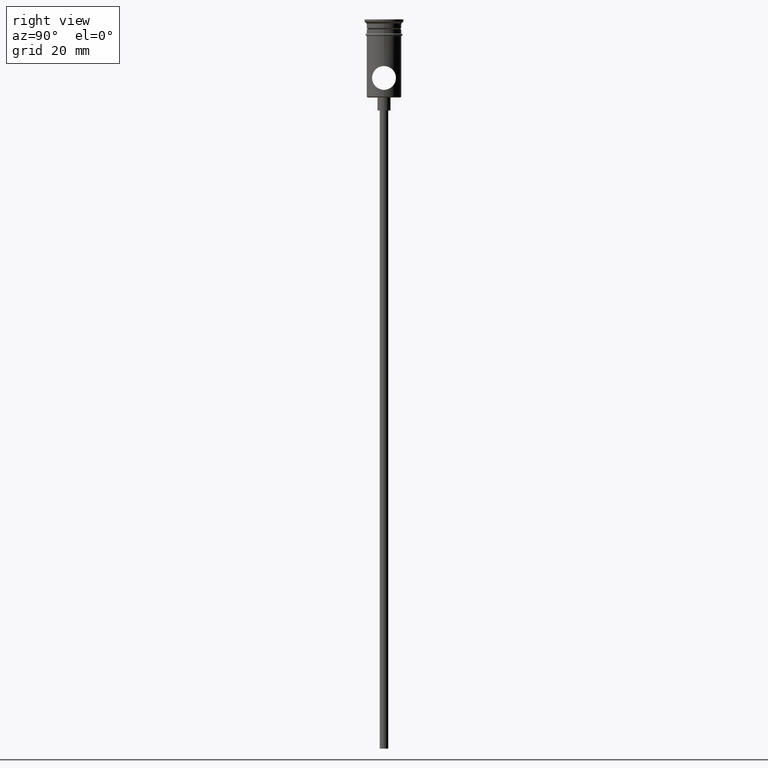
[diagram: clean part render]
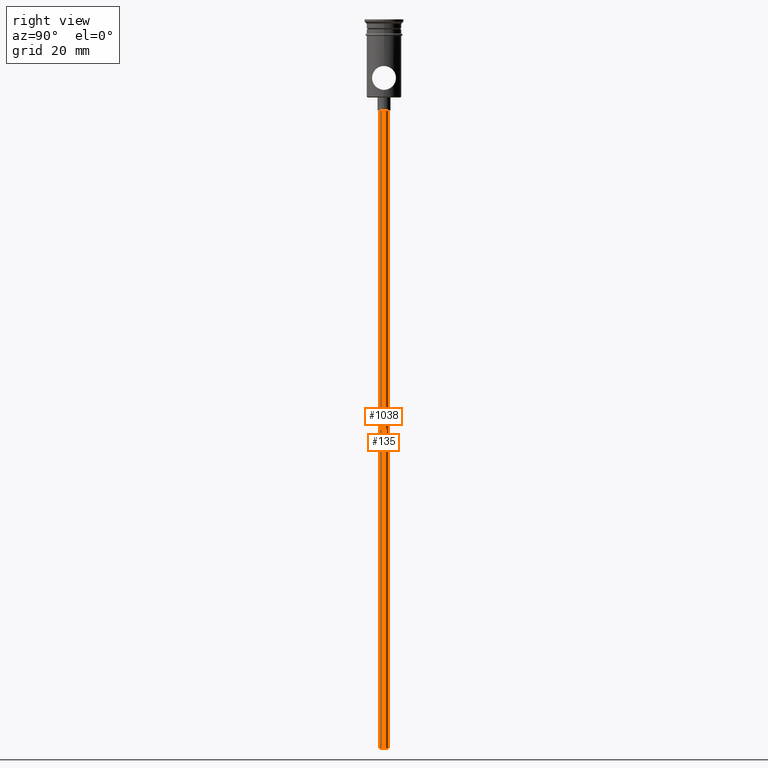
[diagram: same view with one multi-face feature highlighted, each face labeled with its STEP entity id]
A machine part, right view. The highlighted faces form ONE feature: a constant-radius fillet chain: 2 tangent blend faces with common blend radius 1 mm. The faces share edges in the B-rep.
Their STEP definitions:
[1] entity #1038 (Cylinder):
#19 = VERTEX_POINT ( 'NONE', #296 ) ;
#20 = CARTESIAN_POINT ( 'NONE',  ( -0.9999999999999997780, 1.224646799147352961E-16, -20.99999999999999645 ) ) ;
#162 = VERTEX_POINT ( 'NONE', #20 ) ;
#178 = ORIENTED_EDGE ( 'NONE', *, *, #1334, .F. ) ;
#262 = LINE ( 'NONE', #1006, #441 ) ;
#267 = CARTESIAN_POINT ( 'NONE',  ( -0.9999999999999997780, 1.224646799147352961E-16, -167.9999999999999716 ) ) ;
#279 = FACE_OUTER_BOUND ( 'NONE', #318, .T. ) ;
#296 = CARTESIAN_POINT ( 'NONE',  ( 0.9999999999999997780, 0.000000000000000000, -167.9999999999999716 ) ) ;
#312 = ORIENTED_EDGE ( 'NONE', *, *, #665, .F. ) ;
#318 = EDGE_LOOP ( 'NONE', ( #178, #312, #1379, #1153 ) ) ;
#343 = DIRECTION ( 'NONE',  ( -1.000000000000000000, 0.000000000000000000, 0.000000000000000000 ) ) ;
#422 = CIRCLE ( 'NONE', #1210, 0.9999999999999997780 ) ;
#441 = VECTOR ( 'NONE', #689, 1000.000000000000000 ) ;
#487 = AXIS2_PLACEMENT_3D ( 'NONE', #882, #1318, #343 ) ;
#518 = CARTESIAN_POINT ( 'NONE',  ( -0.9999999999999997780, 1.224646799147352961E-16, -167.9999999999999716 ) ) ;
#592 = CARTESIAN_POINT ( 'NONE',  ( 0.000000000000000000, 0.000000000000000000, -167.9999999999999716 ) ) ;
#665 = EDGE_CURVE ( 'NONE', #19, #831, #1164, .T. ) ;
#689 = DIRECTION ( 'NONE',  ( -0.000000000000000000, -0.000000000000000000, 1.000000000000000000 ) ) ;
#781 = EDGE_CURVE ( 'NONE', #799, #162, #422, .T. ) ;
#799 = VERTEX_POINT ( 'NONE', #916 ) ;
#831 = VERTEX_POINT ( 'NONE', #267 ) ;
#852 = VECTOR ( 'NONE', #1308, 1000.000000000000000 ) ;
#882 = CARTESIAN_POINT ( 'NONE',  ( 0.000000000000000000, 0.000000000000000000, -167.9999999999999716 ) ) ;
#915 = CYLINDRICAL_SURFACE ( 'NONE', #1059, 0.9999999999999997780 ) ;
#916 = CARTESIAN_POINT ( 'NONE',  ( 0.9999999999999997780, 0.000000000000000000, -20.99999999999999645 ) ) ;
#1006 = CARTESIAN_POINT ( 'NONE',  ( 0.9999999999999997780, 0.000000000000000000, -167.9999999999999716 ) ) ;
#1038 = ADVANCED_FACE ( 'NONE', ( #279 ), #915, .T. ) ;
#1059 = AXIS2_PLACEMENT_3D ( 'NONE', #592, #1253, #1342 ) ;
#1137 = EDGE_CURVE ( 'NONE', #19, #799, #262, .T. ) ;
#1142 = DIRECTION ( 'NONE',  ( -1.000000000000000000, 0.000000000000000000, 0.000000000000000000 ) ) ;
#1153 = ORIENTED_EDGE ( 'NONE', *, *, #781, .T. ) ;
#1164 = CIRCLE ( 'NONE', #487, 0.9999999999999997780 ) ;
#1210 = AXIS2_PLACEMENT_3D ( 'NONE', #1241, #1263, #1142 ) ;
#1241 = CARTESIAN_POINT ( 'NONE',  ( 0.000000000000000000, 0.000000000000000000, -20.99999999999999645 ) ) ;
#1253 = DIRECTION ( 'NONE',  ( -0.000000000000000000, -0.000000000000000000, 1.000000000000000000 ) ) ;
#1263 = DIRECTION ( 'NONE',  ( 0.000000000000000000, 0.000000000000000000, -1.000000000000000000 ) ) ;
#1308 = DIRECTION ( 'NONE',  ( -0.000000000000000000, -0.000000000000000000, 1.000000000000000000 ) ) ;
#1318 = DIRECTION ( 'NONE',  ( 0.000000000000000000, 0.000000000000000000, -1.000000000000000000 ) ) ;
#1334 = EDGE_CURVE ( 'NONE', #831, #162, #1368, .T. ) ;
#1342 = DIRECTION ( 'NONE',  ( 1.000000000000000000, 0.000000000000000000, 0.000000000000000000 ) ) ;
#1368 = LINE ( 'NONE', #518, #852 ) ;
#1379 = ORIENTED_EDGE ( 'NONE', *, *, #1137, .T. ) ;
[2] entity #135 (Cylinder):
#19 = VERTEX_POINT ( 'NONE', #296 ) ;
#20 = CARTESIAN_POINT ( 'NONE',  ( -0.9999999999999997780, 1.224646799147352961E-16, -20.99999999999999645 ) ) ;
#61 = CARTESIAN_POINT ( 'NONE',  ( 0.000000000000000000, 0.000000000000000000, -20.99999999999999645 ) ) ;
#135 = ADVANCED_FACE ( 'NONE', ( #472 ), #673, .T. ) ;
#137 = AXIS2_PLACEMENT_3D ( 'NONE', #972, #523, #227 ) ;
#162 = VERTEX_POINT ( 'NONE', #20 ) ;
#226 = EDGE_CURVE ( 'NONE', #831, #19, #1357, .T. ) ;
#227 = DIRECTION ( 'NONE',  ( -1.000000000000000000, 0.000000000000000000, 0.000000000000000000 ) ) ;
#262 = LINE ( 'NONE', #1006, #441 ) ;
#267 = CARTESIAN_POINT ( 'NONE',  ( -0.9999999999999997780, 1.224646799147352961E-16, -167.9999999999999716 ) ) ;
#296 = CARTESIAN_POINT ( 'NONE',  ( 0.9999999999999997780, 0.000000000000000000, -167.9999999999999716 ) ) ;
#371 = DIRECTION ( 'NONE',  ( -1.000000000000000000, 0.000000000000000000, 0.000000000000000000 ) ) ;
#441 = VECTOR ( 'NONE', #689, 1000.000000000000000 ) ;
#455 = DIRECTION ( 'NONE',  ( -0.000000000000000000, -0.000000000000000000, 1.000000000000000000 ) ) ;
#464 = AXIS2_PLACEMENT_3D ( 'NONE', #61, #1149, #371 ) ;
#472 = FACE_OUTER_BOUND ( 'NONE', #619, .T. ) ;
#518 = CARTESIAN_POINT ( 'NONE',  ( -0.9999999999999997780, 1.224646799147352961E-16, -167.9999999999999716 ) ) ;
#523 = DIRECTION ( 'NONE',  ( 0.000000000000000000, 0.000000000000000000, -1.000000000000000000 ) ) ;
#564 = AXIS2_PLACEMENT_3D ( 'NONE', #1026, #455, #1007 ) ;
#619 = EDGE_LOOP ( 'NONE', ( #1196, #1229, #1398, #1040 ) ) ;
#673 = CYLINDRICAL_SURFACE ( 'NONE', #564, 0.9999999999999997780 ) ;
#689 = DIRECTION ( 'NONE',  ( -0.000000000000000000, -0.000000000000000000, 1.000000000000000000 ) ) ;
#799 = VERTEX_POINT ( 'NONE', #916 ) ;
#831 = VERTEX_POINT ( 'NONE', #267 ) ;
#852 = VECTOR ( 'NONE', #1308, 1000.000000000000000 ) ;
#916 = CARTESIAN_POINT ( 'NONE',  ( 0.9999999999999997780, 0.000000000000000000, -20.99999999999999645 ) ) ;
#972 = CARTESIAN_POINT ( 'NONE',  ( 0.000000000000000000, 0.000000000000000000, -167.9999999999999716 ) ) ;
#1006 = CARTESIAN_POINT ( 'NONE',  ( 0.9999999999999997780, 0.000000000000000000, -167.9999999999999716 ) ) ;
#1007 = DIRECTION ( 'NONE',  ( 1.000000000000000000, 0.000000000000000000, 0.000000000000000000 ) ) ;
#1026 = CARTESIAN_POINT ( 'NONE',  ( 0.000000000000000000, 0.000000000000000000, -167.9999999999999716 ) ) ;
#1040 = ORIENTED_EDGE ( 'NONE', *, *, #1137, .F. ) ;
#1060 = EDGE_CURVE ( 'NONE', #162, #799, #1329, .T. ) ;
#1137 = EDGE_CURVE ( 'NONE', #19, #799, #262, .T. ) ;
#1149 = DIRECTION ( 'NONE',  ( 0.000000000000000000, 0.000000000000000000, -1.000000000000000000 ) ) ;
#1196 = ORIENTED_EDGE ( 'NONE', *, *, #226, .F. ) ;
#1229 = ORIENTED_EDGE ( 'NONE', *, *, #1334, .T. ) ;
#1308 = DIRECTION ( 'NONE',  ( -0.000000000000000000, -0.000000000000000000, 1.000000000000000000 ) ) ;
#1329 = CIRCLE ( 'NONE', #464, 0.9999999999999997780 ) ;
#1334 = EDGE_CURVE ( 'NONE', #831, #162, #1368, .T. ) ;
#1357 = CIRCLE ( 'NONE', #137, 0.9999999999999997780 ) ;
#1368 = LINE ( 'NONE', #518, #852 ) ;
#1398 = ORIENTED_EDGE ( 'NONE', *, *, #1060, .T. ) ;